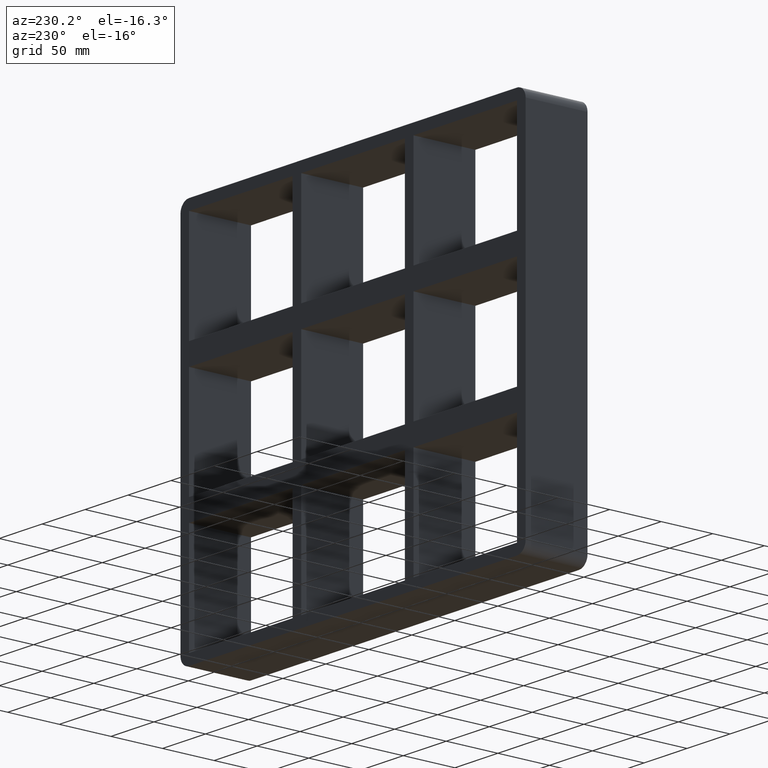
[diagram: clean part render]
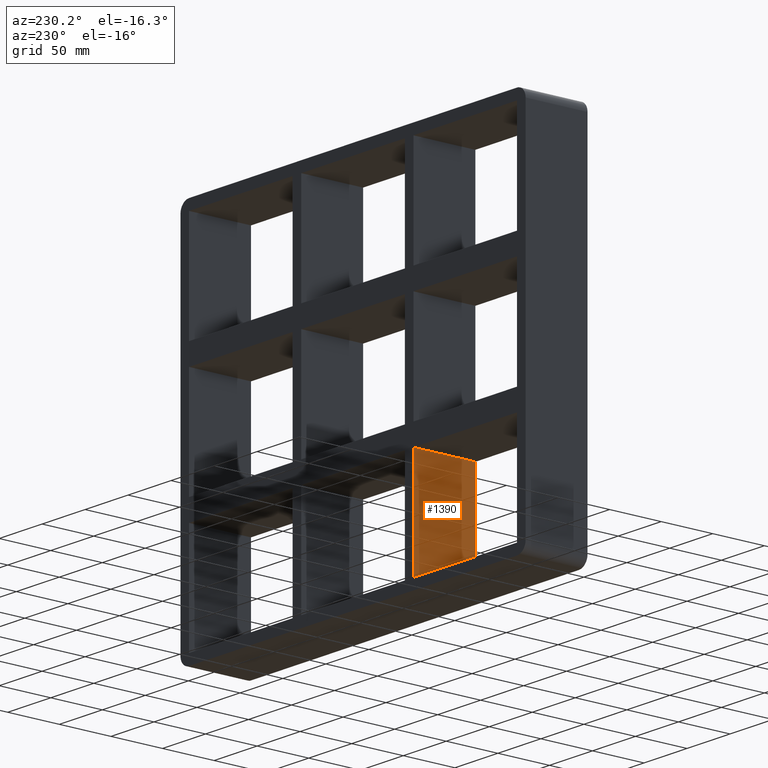
[diagram: same view with one face highlighted and labeled with its STEP entity id]
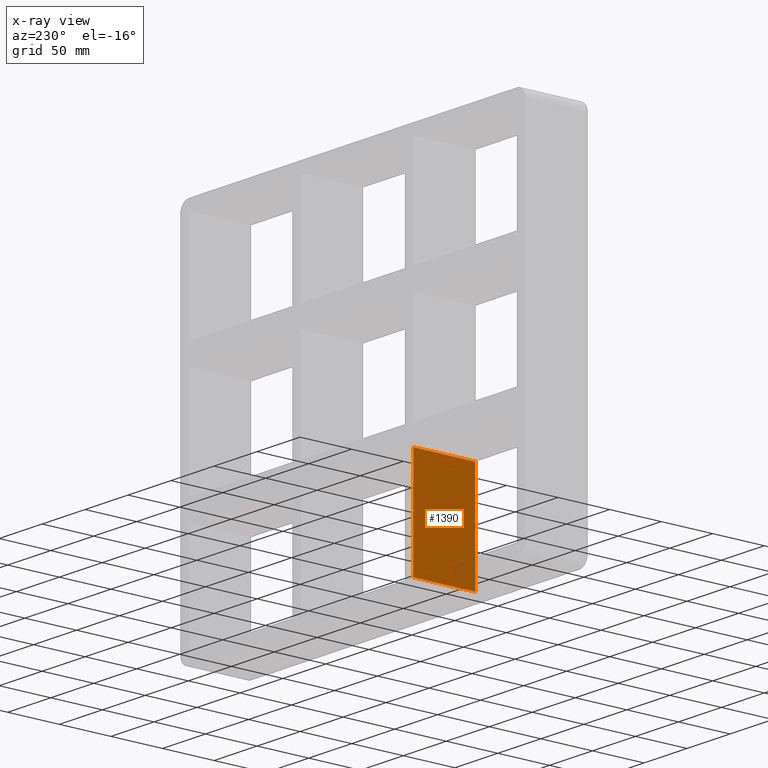
[diagram: x-ray of the same camera — body ghosted, the highlighted face saturated]
A machine part, auxiliary view. The second image highlights one B-rep face of the part: STEP entity #1390.
The next image is the same camera in x-ray: the body ghosted, the highlighted face saturated — about 5% of this face is hidden behind the body in this view.
In plain terms, the highlighted planar face has unit normal (-1, 0, 0).
Its self-contained STEP definition (entity closure, byte-faithful):
#724=CARTESIAN_POINT('',(-70.250000000001364,57.0,-171.50000000000003));
#725=VERTEX_POINT('',#724);
#732=CARTESIAN_POINT('',(-70.250000000001364,57.0,-70.500000000009436));
#733=VERTEX_POINT('',#732);
#734=CARTESIAN_POINT('',(-70.250000000001364,57.0,-171.50000000000003));
#735=DIRECTION('',(0.0,0.0,1.0));
#736=VECTOR('',#735,100.99999999999058);
#737=LINE('',#734,#736);
#738=EDGE_CURVE('',#725,#733,#737,.T.);
#1177=CARTESIAN_POINT('',(-70.250000000001364,-3.0,-70.500000000009436));
#1178=VERTEX_POINT('',#1177);
#1187=CARTESIAN_POINT('',(-70.250000000001364,-3.0,-171.50000000000003));
#1188=VERTEX_POINT('',#1187);
#1189=CARTESIAN_POINT('',(-70.250000000001364,-3.0,-171.50000000000003));
#1190=DIRECTION('',(0.0,0.0,1.0));
#1191=VECTOR('',#1190,100.99999999999058);
#1192=LINE('',#1189,#1191);
#1193=EDGE_CURVE('',#1188,#1178,#1192,.T.);
#1287=CARTESIAN_POINT('',(-70.250000000001393,-3.0,-70.500000000009436));
#1288=DIRECTION('',(0.0,1.0,0.0));
#1289=VECTOR('',#1288,60.0);
#1290=LINE('',#1287,#1289);
#1291=EDGE_CURVE('',#1178,#733,#1290,.T.);
#1374=CARTESIAN_POINT('',(-70.250000000001364,-3.0,-171.50000000000003));
#1375=DIRECTION('',(-1.0,0.0,0.0));
#1376=DIRECTION('',(0.0,0.0,1.0));
#1377=AXIS2_PLACEMENT_3D('',#1374,#1375,#1376);
#1378=PLANE('',#1377);
#1379=ORIENTED_EDGE('',*,*,#1291,.T.);
#1380=ORIENTED_EDGE('',*,*,#738,.F.);
#1381=CARTESIAN_POINT('',(-70.250000000001364,-3.0,-171.50000000000003));
#1382=DIRECTION('',(0.0,1.0,0.0));
#1383=VECTOR('',#1382,60.000000000000007);
#1384=LINE('',#1381,#1383);
#1385=EDGE_CURVE('',#1188,#725,#1384,.T.);
#1386=ORIENTED_EDGE('',*,*,#1385,.F.);
#1387=ORIENTED_EDGE('',*,*,#1193,.T.);
#1388=EDGE_LOOP('',(#1379,#1380,#1386,#1387));
#1389=FACE_OUTER_BOUND('',#1388,.T.);
#1390=ADVANCED_FACE('',(#1389),#1378,.T.);